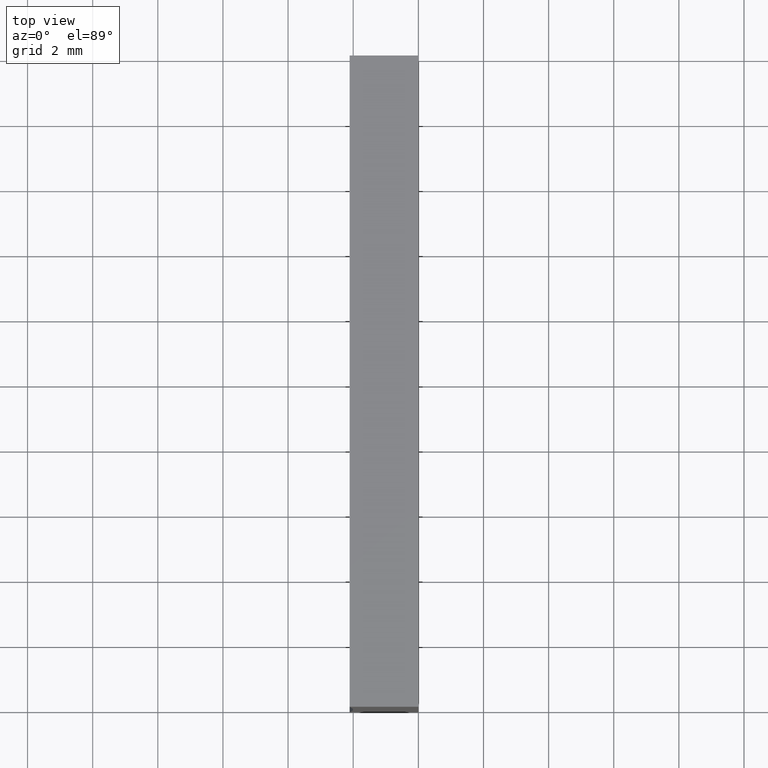
[diagram: clean part render]
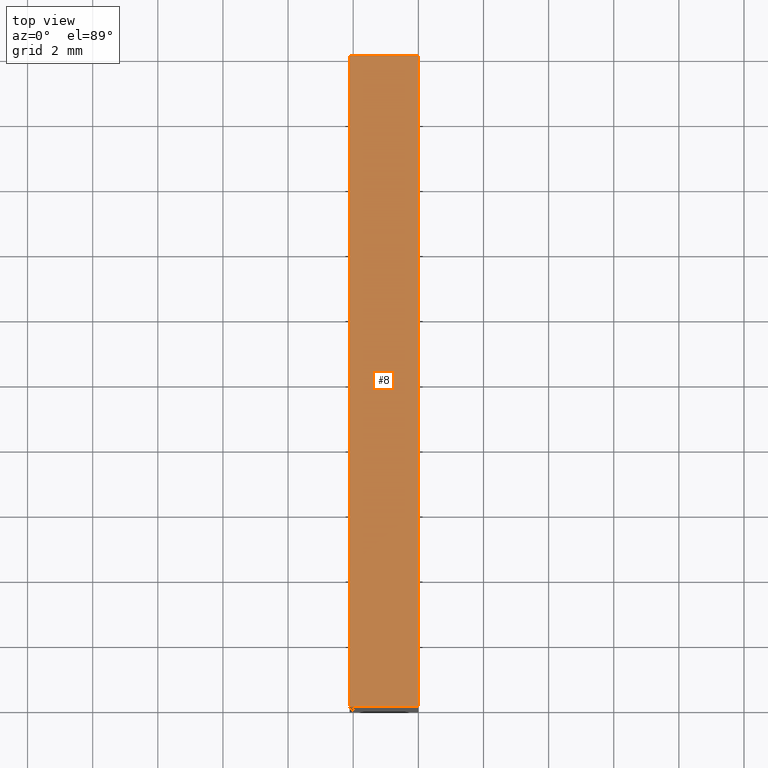
[diagram: same view with one face highlighted and labeled with its STEP entity id]
A machine part, top view. The second image highlights one B-rep face of the part: STEP entity #8.
In plain terms, the highlighted planar face has unit normal (-0, 0, -1).
Its self-contained STEP definition (entity closure, byte-faithful):
#1 = EDGE_CURVE ( 'NONE', #86, #123, #80, .T. ) ;
#2 = VECTOR ( 'NONE', #59, 1000.000000000000000 ) ;
#3 = VERTEX_POINT ( 'NONE', #82 ) ;
#8 = ADVANCED_FACE ( 'NONE', ( #153 ), #126, .F. ) ;
#9 = ORIENTED_EDGE ( 'NONE', *, *, #1, .T. ) ;
#13 = VERTEX_POINT ( 'NONE', #160 ) ;
#15 = DIRECTION ( 'NONE',  ( -8.224915575553603800E-016, 0.0000000000000000000, -1.000000000000000000 ) ) ;
#35 = CARTESIAN_POINT ( 'NONE',  ( 6.123233995736766300E-016, 20.00000000000000000, 10.00000000000000000 ) ) ;
#41 = EDGE_CURVE ( 'NONE', #13, #3, #64, .T. ) ;
#48 = ORIENTED_EDGE ( 'NONE', *, *, #120, .T. ) ;
#50 = LINE ( 'NONE', #140, #188 ) ;
#53 = DIRECTION ( 'NONE',  ( -0.0000000000000000000, -1.000000000000000000, -0.0000000000000000000 ) ) ;
#59 = DIRECTION ( 'NONE',  ( 1.000000000000000000, -0.0000000000000000000, -8.224915575553605800E-016 ) ) ;
#60 = CARTESIAN_POINT ( 'NONE',  ( -2.109107941646009900, 20.00000000000000000, 10.00000000000000200 ) ) ;
#61 = EDGE_CURVE ( 'NONE', #86, #13, #50, .T. ) ;
#64 = LINE ( 'NONE', #65, #151 ) ;
#65 = CARTESIAN_POINT ( 'NONE',  ( 6.123233995736766300E-016, 20.00000000000000000, 10.00000000000000000 ) ) ;
#80 = LINE ( 'NONE', #125, #173 ) ;
#82 = CARTESIAN_POINT ( 'NONE',  ( 6.123233995736766300E-016, 0.0000000000000000000, 10.00000000000000000 ) ) ;
#86 = VERTEX_POINT ( 'NONE', #60 ) ;
#104 = ORIENTED_EDGE ( 'NONE', *, *, #41, .F. ) ;
#105 = CARTESIAN_POINT ( 'NONE',  ( -2.109107941646009900, 0.0000000000000000000, 10.00000000000000200 ) ) ;
#112 = DIRECTION ( 'NONE',  ( -1.000000000000000000, 0.0000000000000000000, 8.224915575553603800E-016 ) ) ;
#116 = AXIS2_PLACEMENT_3D ( 'NONE', #35, #15, #112 ) ;
#120 = EDGE_CURVE ( 'NONE', #123, #3, #144, .T. ) ;
#123 = VERTEX_POINT ( 'NONE', #105 ) ;
#124 = DIRECTION ( 'NONE',  ( -0.0000000000000000000, -1.000000000000000000, -0.0000000000000000000 ) ) ;
#125 = CARTESIAN_POINT ( 'NONE',  ( -2.109107941646009900, 20.00000000000000000, 10.00000000000000200 ) ) ;
#126 = PLANE ( 'NONE',  #116 ) ;
#140 = CARTESIAN_POINT ( 'NONE',  ( 6.123233995736766300E-016, 20.00000000000000000, 10.00000000000000000 ) ) ;
#144 = LINE ( 'NONE', #186, #2 ) ;
#151 = VECTOR ( 'NONE', #124, 1000.000000000000000 ) ;
#152 = ORIENTED_EDGE ( 'NONE', *, *, #61, .F. ) ;
#153 = FACE_OUTER_BOUND ( 'NONE', #167, .T. ) ;
#160 = CARTESIAN_POINT ( 'NONE',  ( 6.123233995736766300E-016, 20.00000000000000000, 10.00000000000000000 ) ) ;
#165 = DIRECTION ( 'NONE',  ( 1.000000000000000000, -0.0000000000000000000, -8.224915575553605800E-016 ) ) ;
#167 = EDGE_LOOP ( 'NONE', ( #48, #104, #152, #9 ) ) ;
#173 = VECTOR ( 'NONE', #53, 1000.000000000000000 ) ;
#186 = CARTESIAN_POINT ( 'NONE',  ( 6.123233995736766300E-016, 0.0000000000000000000, 10.00000000000000000 ) ) ;
#188 = VECTOR ( 'NONE', #165, 1000.000000000000000 ) ;